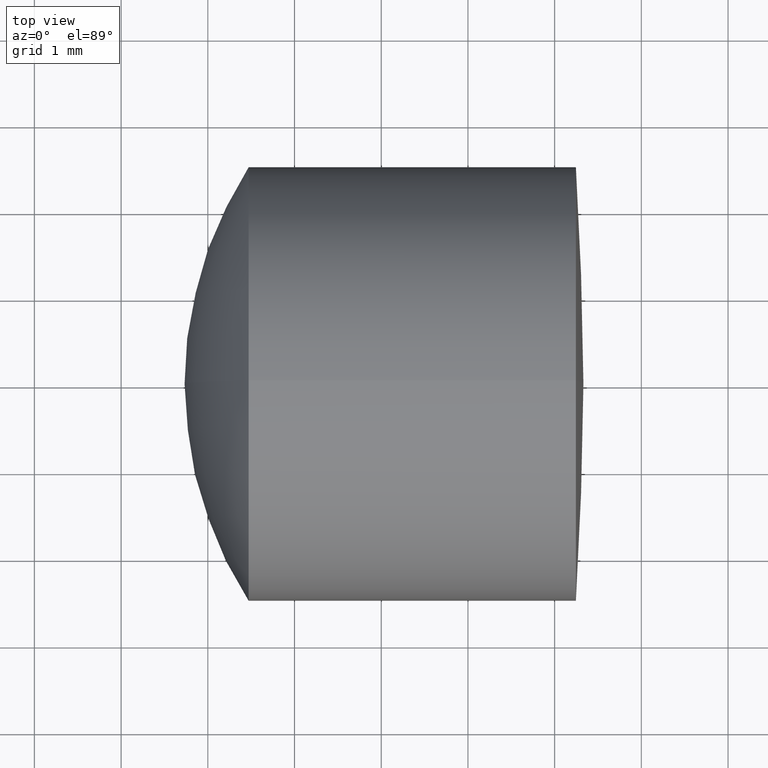
[diagram: clean part render]
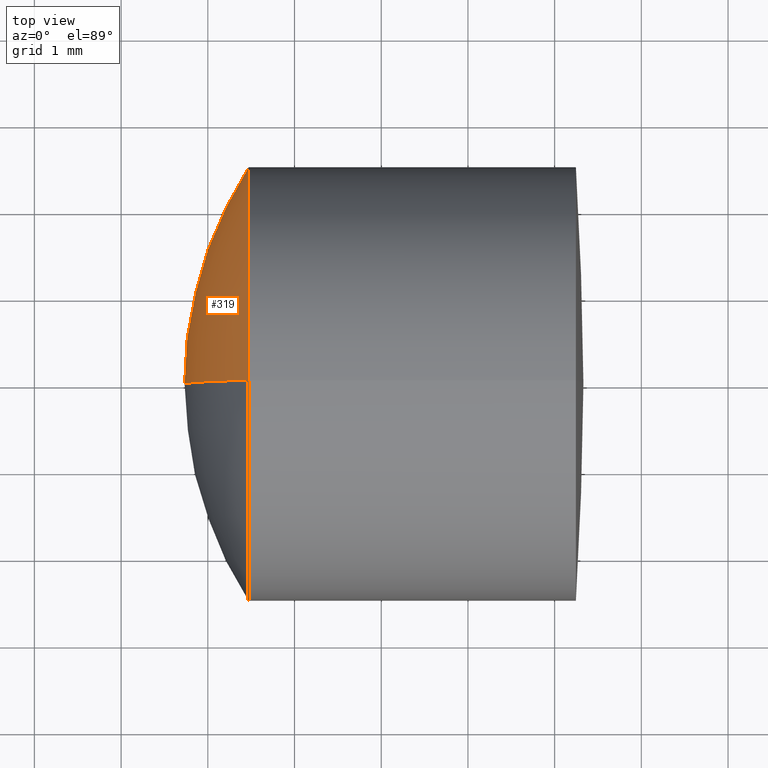
[diagram: same view with one face highlighted and labeled with its STEP entity id]
A machine part, top view. The second image highlights one B-rep face of the part: STEP entity #319.
In plain terms, the highlighted spherical surface has radius 4.6 mm.
Its self-contained STEP definition (entity closure, byte-faithful):
#32 = CARTESIAN_POINT ( 'NONE',  ( 257.4708021428207900, 0.0000000000000000000, -2.500000000000000400 ) ) ;
#58 = ORIENTED_EDGE ( 'NONE', *, *, #299, .T. ) ;
#67 = EDGE_LOOP ( 'NONE', ( #127, #58, #273 ) ) ;
#69 = DIRECTION ( 'NONE',  ( -0.0000000000000000000, -1.000000000000000000, -0.0000000000000000000 ) ) ;
#72 = CARTESIAN_POINT ( 'NONE',  ( 257.4708021428207900, 0.0000000000000000000, 0.0000000000000000000 ) ) ;
#79 = CIRCLE ( 'NONE', #245, 4.600000000000010300 ) ;
#106 = EDGE_CURVE ( 'NONE', #340, #244, #79, .T. ) ;
#119 = CARTESIAN_POINT ( 'NONE',  ( 261.3321490580823900, 0.0000000000000000000, 4.129147144605070300E-016 ) ) ;
#125 = CARTESIAN_POINT ( 'NONE',  ( 261.3321490580823900, 0.0000000000000000000, 4.129147144605070300E-016 ) ) ;
#127 = ORIENTED_EDGE ( 'NONE', *, *, #106, .F. ) ;
#132 = DIRECTION ( 'NONE',  ( -1.000000000000000000, -0.0000000000000000000, -0.0000000000000000000 ) ) ;
#147 = DIRECTION ( 'NONE',  ( 0.0000000000000000000, 0.0000000000000000000, 1.000000000000000000 ) ) ;
#155 = DIRECTION ( 'NONE',  ( 0.0000000000000000000, 0.0000000000000000000, 1.000000000000000000 ) ) ;
#164 = CIRCLE ( 'NONE', #317, 2.500000000000000400 ) ;
#168 = CARTESIAN_POINT ( 'NONE',  ( 257.4708021428207900, -3.061616997868383100E-016, 2.500000000000000400 ) ) ;
#201 = DIRECTION ( 'NONE',  ( 0.0000000000000000000, 1.000000000000000000, -0.0000000000000000000 ) ) ;
#205 = DIRECTION ( 'NONE',  ( 0.0000000000000000000, 1.224646799147353200E-016, -1.000000000000000000 ) ) ;
#208 = VERTEX_POINT ( 'NONE', #32 ) ;
#209 = CARTESIAN_POINT ( 'NONE',  ( 261.3321490580823900, 0.0000000000000000000, 4.129147144605070300E-016 ) ) ;
#212 = AXIS2_PLACEMENT_3D ( 'NONE', #125, #69, #309 ) ;
#217 = DIRECTION ( 'NONE',  ( 0.0000000000000000000, -1.000000000000000000, -1.224646799147353200E-016 ) ) ;
#237 = FACE_OUTER_BOUND ( 'NONE', #67, .T. ) ;
#244 = VERTEX_POINT ( 'NONE', #322 ) ;
#245 = AXIS2_PLACEMENT_3D ( 'NONE', #209, #217, #205 ) ;
#273 = ORIENTED_EDGE ( 'NONE', *, *, #334, .T. ) ;
#276 = CIRCLE ( 'NONE', #338, 4.600000000000010300 ) ;
#299 = EDGE_CURVE ( 'NONE', #340, #208, #164, .T. ) ;
#309 = DIRECTION ( 'NONE',  ( 0.0000000000000000000, 0.0000000000000000000, -1.000000000000000000 ) ) ;
#315 = SPHERICAL_SURFACE ( 'NONE', #212, 4.600000000000010300 ) ;
#317 = AXIS2_PLACEMENT_3D ( 'NONE', #72, #132, #155 ) ;
#319 = ADVANCED_FACE ( 'NONE', ( #237 ), #315, .T. ) ;
#322 = CARTESIAN_POINT ( 'NONE',  ( 256.7321490580823700, 0.0000000000000000000, 1.312459506566151800E-016 ) ) ;
#334 = EDGE_CURVE ( 'NONE', #208, #244, #276, .T. ) ;
#338 = AXIS2_PLACEMENT_3D ( 'NONE', #119, #201, #147 ) ;
#340 = VERTEX_POINT ( 'NONE', #168 ) ;